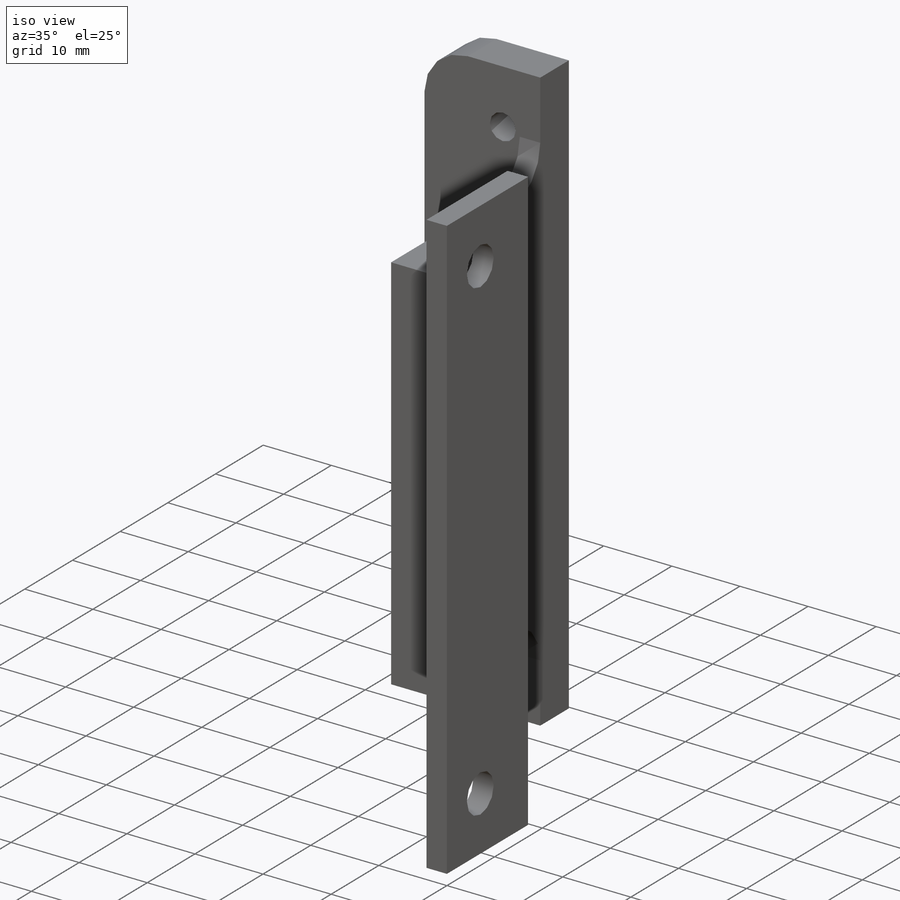
[diagram: iso view]
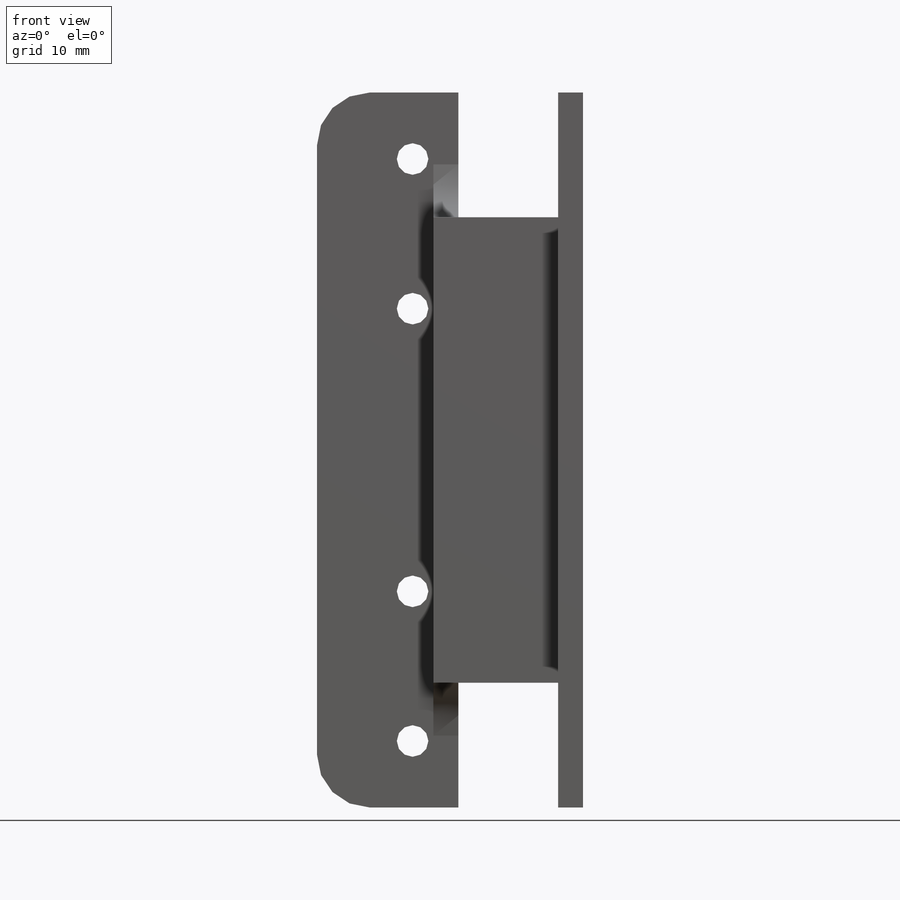
[diagram: front view]
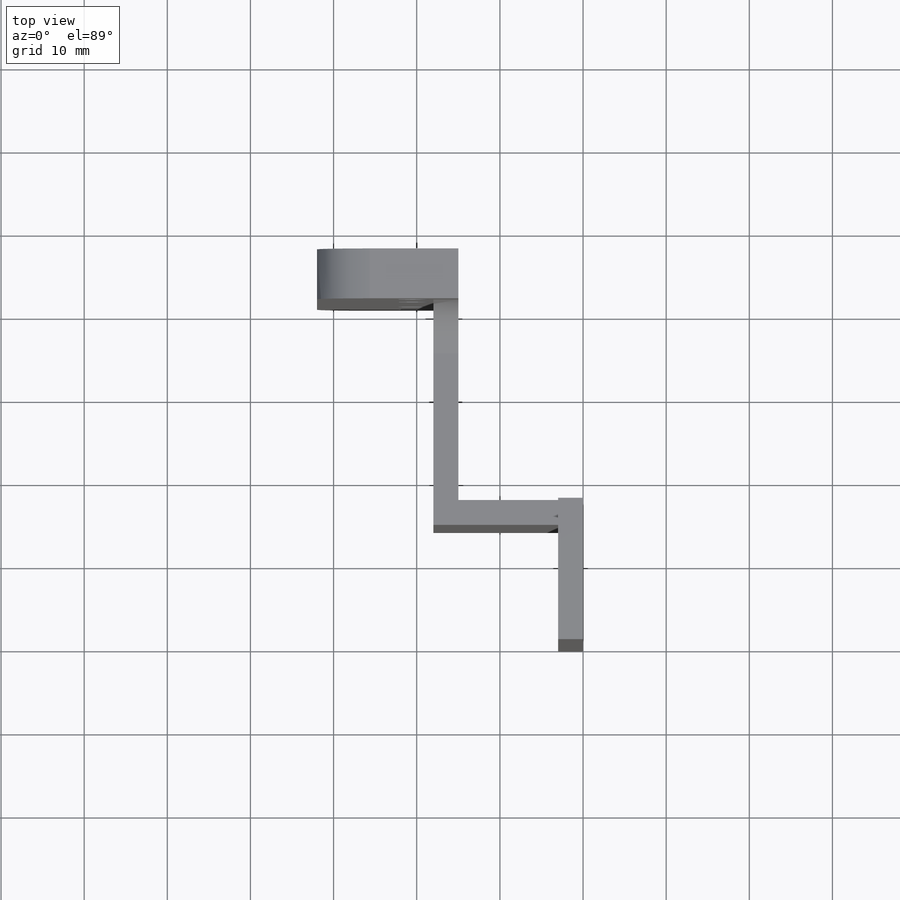
[diagram: top view]
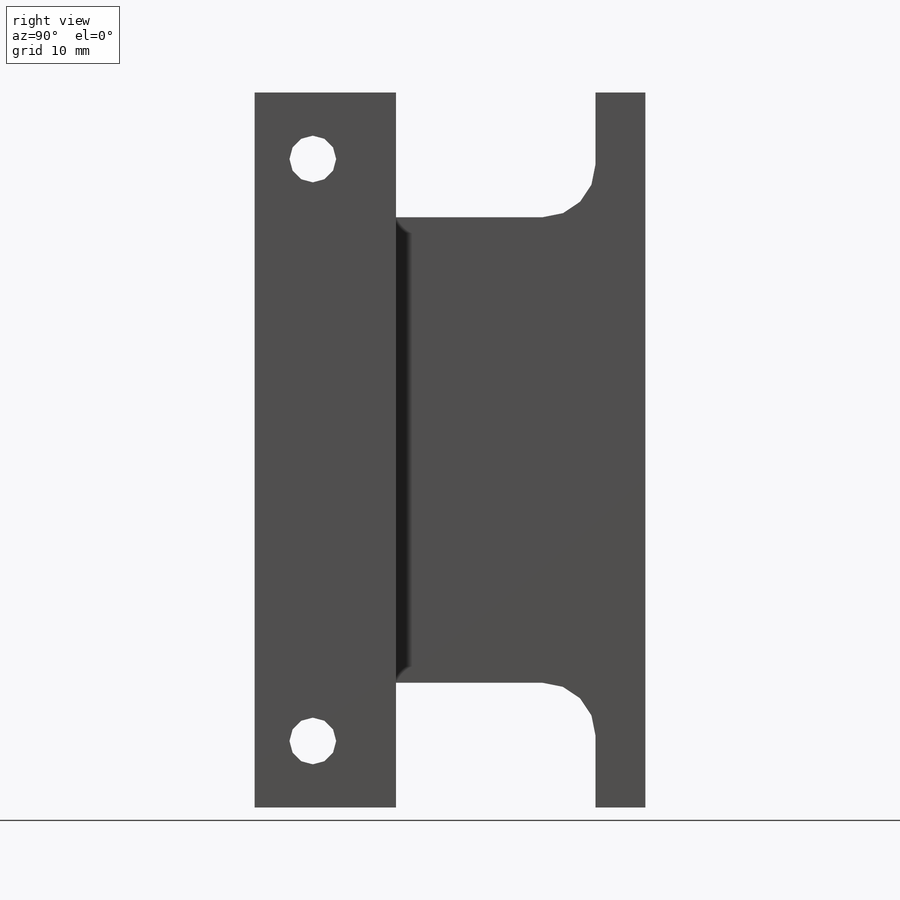
[diagram: right view]
SOLIDWORKS PART (.sldprt)
format: sldprt  version: not decoded by parser v0  size: 279,552 bytes
history: native  units: mm
features: sketch x8, thread x4, fillet x2, hole x2, material x1, cut_extrude x1, mirror x1, extrude x1 (+11 scaffold rows collapsed)
feature tree (31):
  scaffold x11  (default folders/planes/origin — collapsed)
  material  "6061-T6 (SS)"
  sketch  "Sketch1"  dims[c1.D1=~17.05164mm c1.D2=8.0mm c2.D1=5.0mm c2.D3=15.0mm c2.D4=27.0mm c2.D5=17.0mm c3.D1=17.0mm c4.D1=86.0mm c4.D5=3.0mm c4.D6=1.0mm c4.D7=5.0mm]
  sketch  "Sketch7"  dims[D1=15.0mm]
  cut_extrude  "Cut-Extrude3"  [1 undecoded]
  mirror  "Mirror3"
  fillet  "Fillet1"  Radius=6.35mm
  sketch  "Sketch11"  dims[D1=0.0mm]
  extrude  "Boss-Extrude1"  Depth=3mm
  hole  "#10-24 Tapped Hole2"  Diameter=3.7973mm Depth=47mm
  sketch  "Sketch5"  dims[c1.D1=6.5mm c1.D2=8.0mm c1.D3=52.0mm c2.D1=5.5mm c2.D2=9.0mm c3.D1=5.5mm]
  sketch  "Sketch4"  dims[hole-wizard template sketch: 60 standard entries collapsed; hole parameters kept: c18.Thru Tap Drill Depth=47.0mm]
  thread  "Hole Thread5"  Diameter=6mm  [1 undecoded]
  thread  "Hole Thread6"  Diameter=6mm  [1 undecoded]
  thread  "Hole Thread7"  Diameter=6mm  [1 undecoded]
  thread  "Hole Thread8"  Diameter=6mm  [1 undecoded]
  fillet  "Fillet2"  Radius=6.35mm
  sketch  "Sketch8"  dims[D1=7.0mm D2=70.0mm]
  hole  "#10 Clearance Hole2"  Diameter=5.6134mm Depth=9.53mm
  sketch  "Sketch10"
  sketch  "Sketch9"  dims[hole-wizard template sketch: 47 standard entries collapsed; hole parameters kept: c15.Hole Depth=9.53mm c15.D3=~14.816244mm c15.Drill Angle=118.0deg]
decode coverage: 16 of 19 modeling features carry decoded parameters
note: ~ marks probable driven/reference dimensions
note: 5 parameter values undecoded
note: suppression state not decoded; provenance and decode notes live in map.json
